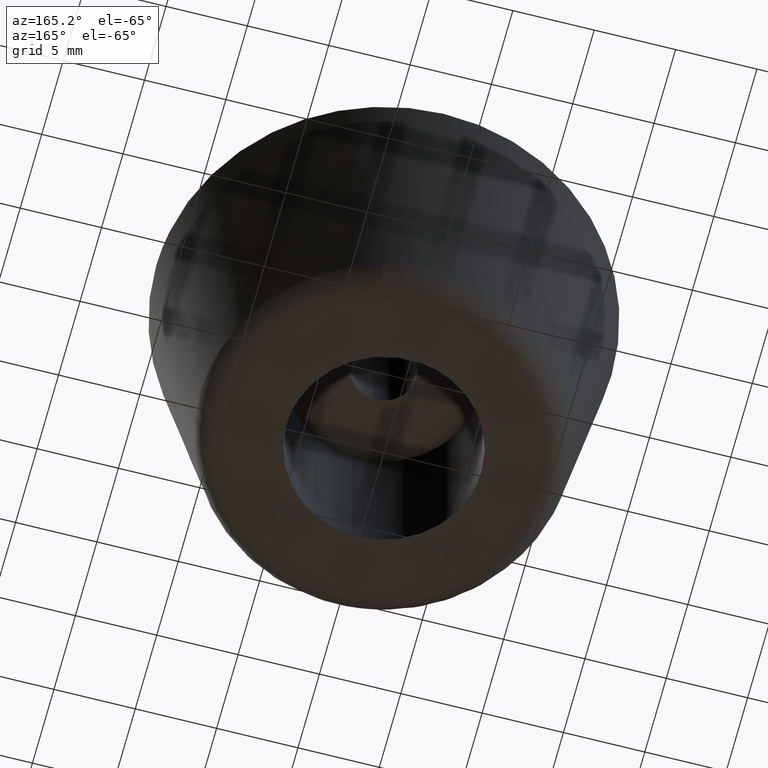
[diagram: clean part render]
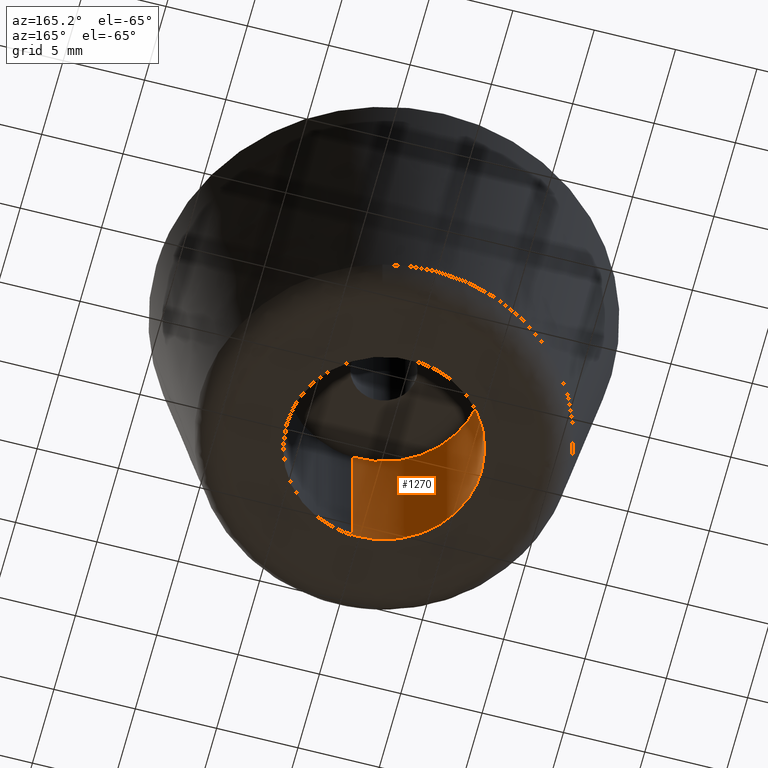
[diagram: same view with one face highlighted and labeled with its STEP entity id]
A machine part, auxiliary view. The second image highlights one B-rep face of the part: STEP entity #1270.
In plain terms, the highlighted face is a freeform B-spline surface patch.
Its self-contained STEP definition (entity closure, byte-faithful):
#1107=CARTESIAN_POINT('',(-0.708204750544155,5.958057236323452,-1.078983E-015));
#1108=VERTEX_POINT('',#1107);
#1126=CARTESIAN_POINT('',(0.366282372672069,-5.988809332696345,2.778333E-014));
#1127=VERTEX_POINT('',#1126);
#1141=CARTESIAN_POINT('',(0.366282481981561,-5.988809326011012,11.0));
#1142=VERTEX_POINT('',#1141);
#1143=CARTESIAN_POINT('',(0.366282481981561,-5.988809326011012,11.0));
#1144=CARTESIAN_POINT('',(0.366282372672069,-5.988809332696345,2.778333E-014));
#1145=QUASI_UNIFORM_CURVE('',1,(#1143,#1144),.UNSPECIFIED.,.F.,.U.);
#1146=EDGE_CURVE('',#1142,#1127,#1145,.T.);
#1163=CARTESIAN_POINT('',(-0.708204758643714,5.958057235360698,11.0));
#1164=VERTEX_POINT('',#1163);
#1180=CARTESIAN_POINT('',(-0.708204758643714,5.958057235360698,11.0));
#1181=CARTESIAN_POINT('',(-0.708204750544155,5.958057236323452,-1.078983E-015));
#1182=QUASI_UNIFORM_CURVE('',1,(#1180,#1181),.UNSPECIFIED.,.F.,.U.);
#1183=EDGE_CURVE('',#1164,#1108,#1182,.T.);
#1188=CARTESIAN_POINT('',(0.366291237209142,-5.988808790531200,11.275000000000000));
#1189=CARTESIAN_POINT('',(-5.622517553322059,-6.355100027740342,11.275000000000002));
#1190=CARTESIAN_POINT('',(-5.988808790531200,-0.366291237209142,11.275000000000000));
#1191=CARTESIAN_POINT('',(-6.334717180395164,5.289260945037006,11.275000000000002));
#1192=CARTESIAN_POINT('',(-0.708205407940551,5.958057158181998,11.275000000000007));
#1193=CARTESIAN_POINT('',(0.366291237209142,-5.988808790531200,-0.281875000000001));
#1194=CARTESIAN_POINT('',(-5.622517553322059,-6.355100027740342,-0.281875000000001));
#1195=CARTESIAN_POINT('',(-5.988808790531200,-0.366291237209142,-0.281875000000001));
#1196=CARTESIAN_POINT('',(-6.334717180395164,5.289260945037006,-0.281875000000001));
#1197=CARTESIAN_POINT('',(-0.708205407940551,5.958057158181998,-0.281875000000001));
#1205=(BOUNDED_SURFACE()B_SPLINE_SURFACE(2,1,((#1188,#1193),(#1189,#1194),(#1190,#1195),(#1191,#1196),(#1192,#1197)),.UNSPECIFIED.,.F.,.F.,.U.)B_SPLINE_SURFACE_WITH_KNOTS((3,2,3),(2,2),(0.0,9.941125496954278,19.484605974030391),(0.0,11.556875000000010),.UNSPECIFIED.)GEOMETRIC_REPRESENTATION_ITEM()RATIONAL_B_SPLINE_SURFACE(((1.0,1.0),(0.707106781186548,0.707106781186548),(1.0,1.0),(0.718822509939086,0.718822509939086),(0.977505800795127,0.977505800795127)))REPRESENTATION_ITEM('')SURFACE());
#1206=CARTESIAN_POINT('',(-6.0,0.0,0.0));
#1207=VERTEX_POINT('',#1206);
#1208=CARTESIAN_POINT('',(-6.0,0.0,0.0));
#1209=CARTESIAN_POINT('',(-6.000000000000001,5.329048339973039,0.0));
#1210=CARTESIAN_POINT('',(-0.708204750544155,5.958057236323452,-1.078983E-015));
#1218=(BOUNDED_CURVE()B_SPLINE_CURVE(2,(#1208,#1209,#1210),.UNSPECIFIED.,.F.,.U.)B_SPLINE_CURVE_WITH_KNOTS((3,3),(0.0,0.229562510810396),.UNSPECIFIED.)CURVE()GEOMETRIC_REPRESENTATION_ITEM()RATIONAL_B_SPLINE_CURVE((1.0,0.731050789159381,0.956026827287138))REPRESENTATION_ITEM(''));
#1219=EDGE_CURVE('',#1207,#1108,#1218,.T.);
#1220=ORIENTED_EDGE('',*,*,#1219,.T.);
#1221=ORIENTED_EDGE('',*,*,#1183,.F.);
#1222=CARTESIAN_POINT('',(-6.0,0.0,11.0));
#1223=VERTEX_POINT('',#1222);
#1224=CARTESIAN_POINT('',(-6.0,0.0,11.0));
#1225=CARTESIAN_POINT('',(-6.000000000000001,5.329048325382115,10.999999999999998));
#1226=CARTESIAN_POINT('',(-0.708204758643714,5.958057235360698,10.999999999999998));
#1234=(BOUNDED_CURVE()B_SPLINE_CURVE(2,(#1224,#1225,#1226),.UNSPECIFIED.,.F.,.U.)B_SPLINE_CURVE_WITH_KNOTS((3,3),(0.0,0.229562510350900),.UNSPECIFIED.)CURVE()GEOMETRIC_REPRESENTATION_ITEM()RATIONAL_B_SPLINE_CURVE((1.0,0.731050789697714,0.956026826386506))REPRESENTATION_ITEM(''));
#1235=EDGE_CURVE('',#1223,#1164,#1234,.T.);
#1236=ORIENTED_EDGE('',*,*,#1235,.F.);
#1237=CARTESIAN_POINT('',(0.366282481981561,-5.988809326011012,11.000000000000004));
#1238=CARTESIAN_POINT('',(0.183312189903831,-6.0,11.000000000000005));
#1239=CARTESIAN_POINT('',(0.0,-6.0,11.0));
#1240=CARTESIAN_POINT('',(-6.0,-6.0,11.0));
#1241=CARTESIAN_POINT('',(-6.0,0.0,11.0));
#1249=(BOUNDED_CURVE()B_SPLINE_CURVE(2,(#1237,#1238,#1239,#1240,#1241),.UNSPECIFIED.,.F.,.U.)B_SPLINE_CURVE_WITH_KNOTS((3,2,3),(0.739333214493585,0.750000000000000,1.0),.UNSPECIFIED.)CURVE()GEOMETRIC_REPRESENTATION_ITEM()RATIONAL_B_SPLINE_CURVE((0.976072582297030,0.987503083434533,1.0,0.707106781186548,1.0))REPRESENTATION_ITEM(''));
#1250=EDGE_CURVE('',#1142,#1223,#1249,.T.);
#1251=ORIENTED_EDGE('',*,*,#1250,.F.);
#1252=ORIENTED_EDGE('',*,*,#1146,.T.);
#1253=CARTESIAN_POINT('',(0.366282372672069,-5.988809332696345,2.778333E-014));
#1254=CARTESIAN_POINT('',(0.183312135095850,-6.000000000000001,0.0));
#1255=CARTESIAN_POINT('',(0.0,-6.0,0.0));
#1256=CARTESIAN_POINT('',(-6.0,-6.0,0.0));
#1257=CARTESIAN_POINT('',(-6.0,0.0,0.0));
#1265=(BOUNDED_CURVE()B_SPLINE_CURVE(2,(#1253,#1254,#1255,#1256,#1257),.UNSPECIFIED.,.F.,.U.)B_SPLINE_CURVE_WITH_KNOTS((3,2,3),(0.739333217642960,0.750000000000000,1.0),.UNSPECIFIED.)CURVE()GEOMETRIC_REPRESENTATION_ITEM()RATIONAL_B_SPLINE_CURVE((0.976072589046756,0.987503087124256,1.0,0.707106781186548,1.0))REPRESENTATION_ITEM(''));
#1266=EDGE_CURVE('',#1127,#1207,#1265,.T.);
#1267=ORIENTED_EDGE('',*,*,#1266,.T.);
#1268=EDGE_LOOP('',(#1220,#1221,#1236,#1251,#1252,#1267));
#1269=FACE_OUTER_BOUND('',#1268,.T.);
#1270=ADVANCED_FACE('',(#1269),#1205,.F.);